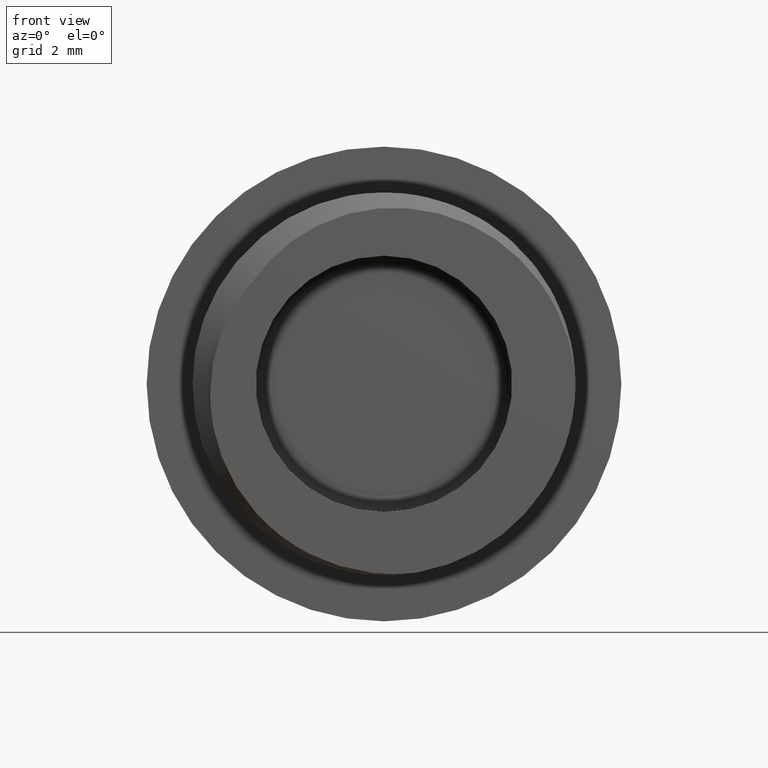
[diagram: clean part render]
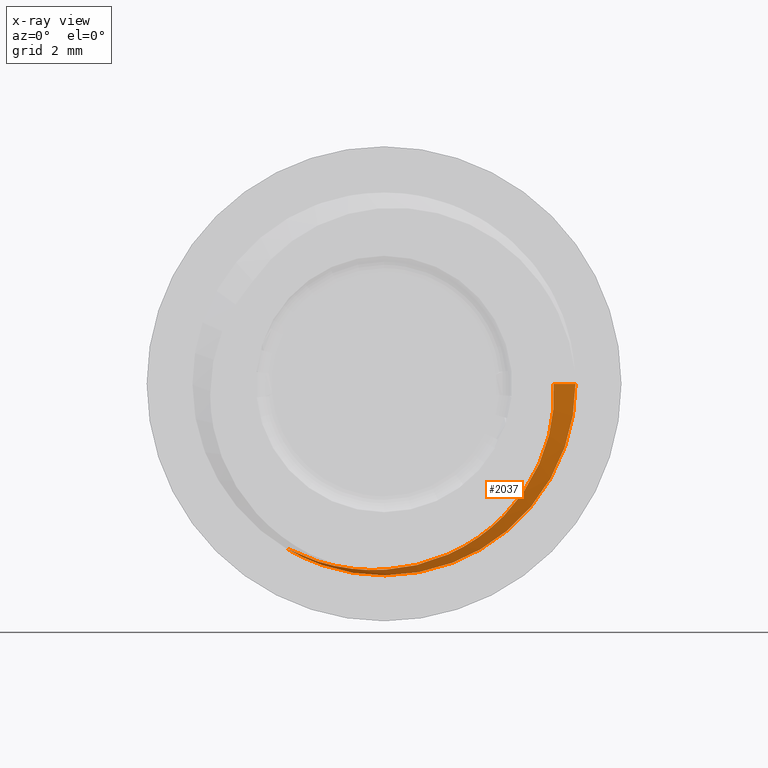
[diagram: x-ray — body ghosted, one internal face saturated and labeled with its STEP entity id]
A machine part, front view, then the same camera in x-ray: the body is ghosted and one INTERNAL B-rep face — a face not visible from any outside direction — is saturated and labeled: STEP entity #2037.
In plain terms, the highlighted face is a freeform B-spline surface patch.
Its self-contained STEP definition (entity closure, byte-faithful):
#439 = CARTESIAN_POINT ( 'NONE',  ( 2.505992052357227400, -0.6438761093469598200, 6.050000000000001600 ) ) ;
#446 = CARTESIAN_POINT ( 'NONE',  ( 6.050000000000001600, -0.8313761093469600500, 2.505992052357228800 ) ) ;
#447 = CARTESIAN_POINT ( 'NONE',  ( -6.050000000000001600, -0.2688761093469597100, 2.505992052357223900 ) ) ;
#449 = CARTESIAN_POINT ( 'NONE',  ( -6.049999999999999800, -0.1751261093469597100, -7.409113134841486500E-016 ) ) ;
#454 = FACE_OUTER_BOUND ( 'NONE', #1606, .T. ) ;
#455 = CARTESIAN_POINT ( 'NONE',  ( -2.505992052357228300, -0.4563761093469597100, 6.050000000000001600 ) ) ;
#459 = CARTESIAN_POINT ( 'NONE',  ( -4.277996026178613000, -0.3626261093469596600, 4.277996026178612100 ) ) ;
#463 = CARTESIAN_POINT ( 'NONE',  ( -6.050000000000001600, -0.08137610934695974100, -2.505992052357227400 ) ) ;
#465 = CARTESIAN_POINT ( 'NONE',  ( -4.277996026178612100, 0.01237389065304023700, -4.277996026178612100 ) ) ;
#466 = CARTESIAN_POINT ( 'NONE',  ( -2.505992052357225200, 0.1061238906530403300, -6.050000000000001600 ) ) ;
#473 = CARTESIAN_POINT ( 'NONE',  ( 6.049999999999999800, -0.9251261093469597100, 1.481822626968297300E-015 ) ) ;
#484 = CARTESIAN_POINT ( 'NONE',  ( 4.277996026178611200, -0.7376261093469600500, 4.277996026178613000 ) ) ;
#485 = CARTESIAN_POINT ( 'NONE',  ( -1.111366970226222900E-015, -0.5501261093469598200, 6.049999999999999800 ) ) ;
#497 = CARTESIAN_POINT ( 'NONE',  ( 4.277996026178611200, 3.762373890653040400, 4.277996026178613000 ) ) ;
#498 = CARTESIAN_POINT ( 'NONE',  ( 6.050000000000001600, 1.981123890653040400, -2.505992052357227000 ) ) ;
#499 = CARTESIAN_POINT ( 'NONE',  ( -6.049999999999999800, 4.324873890653039500, -7.409113134841486500E-016 ) ) ;
#500 = CARTESIAN_POINT ( 'NONE',  ( 3.704556567420743300E-016, 0.1998738906530402900, -6.049999999999999800 ) ) ;
#501 = CARTESIAN_POINT ( 'NONE',  ( -6.050000000000001600, 4.418623890653042200, -2.505992052357227400 ) ) ;
#502 = CARTESIAN_POINT ( 'NONE',  ( -2.505992052357225200, 3.106123890653040400, -6.050000000000001600 ) ) ;
#503 = CARTESIAN_POINT ( 'NONE',  ( 6.050000000000001600, 2.168623890653040800, 2.505992052357228800 ) ) ;
#504 = CARTESIAN_POINT ( 'NONE',  ( 4.277996026178611200, 2.262373890653040400, 4.277996026178613000 ) ) ;
#505 = CARTESIAN_POINT ( 'NONE',  ( -4.277996026178613000, 2.637373890653040400, 4.277996026178612100 ) ) ;
#506 = CARTESIAN_POINT ( 'NONE',  ( 6.050000000000001600, 3.668623890653042200, 2.505992052357228800 ) ) ;
#507 = CARTESIAN_POINT ( 'NONE',  ( -4.277996026178612100, 4.512373890653040400, -4.277996026178612100 ) ) ;
#508 = CARTESIAN_POINT ( 'NONE',  ( 4.277996026178612100, 4.887373890653040400, -4.277996026178612100 ) ) ;
#509 = CARTESIAN_POINT ( 'NONE',  ( 2.505992052357227400, 0.2936238906530404000, -6.050000000000001600 ) ) ;
#510 = CARTESIAN_POINT ( 'NONE',  ( -4.277996026178612100, 1.512373890653040200, -4.277996026178612100 ) ) ;
#511 = CARTESIAN_POINT ( 'NONE',  ( 6.050000000000001600, 4.981123890653040400, -2.505992052357227000 ) ) ;
#512 = CARTESIAN_POINT ( 'NONE',  ( 2.505992052357227400, 5.356123890653042200, 6.050000000000001600 ) ) ;
#513 = CARTESIAN_POINT ( 'NONE',  ( -6.049999999999999800, 5.824873890653040400, -7.409113134841486500E-016 ) ) ;
#514 = CARTESIAN_POINT ( 'NONE',  ( -6.050000000000001600, 1.418623890653040200, -2.505992052357227400 ) ) ;
#515 = CARTESIAN_POINT ( 'NONE',  ( -4.277996026178613000, 1.137373890653040400, 4.277996026178612100 ) ) ;
#516 = CARTESIAN_POINT ( 'NONE',  ( 2.505992052357227400, 1.793623890653040200, -6.050000000000001600 ) ) ;
#517 = CARTESIAN_POINT ( 'NONE',  ( 4.277996026178612100, 3.387373890653040000, -4.277996026178612100 ) ) ;
#518 = CARTESIAN_POINT ( 'NONE',  ( -6.050000000000001600, 5.731123890653040400, 2.505992052357223900 ) ) ;
#519 = CARTESIAN_POINT ( 'NONE',  ( 6.049999999999999800, 2.074873890653040400, 1.481822626968297300E-015 ) ) ;
#520 = CARTESIAN_POINT ( 'NONE',  ( -2.505992052357225200, 6.106123890653039500, -6.050000000000001600 ) ) ;
#521 = CARTESIAN_POINT ( 'NONE',  ( -1.111366970226222900E-015, 2.449873890653040000, 6.049999999999999800 ) ) ;
#522 = CARTESIAN_POINT ( 'NONE',  ( 2.505992052357227400, 2.356123890653040000, 6.050000000000001600 ) ) ;
#523 = CARTESIAN_POINT ( 'NONE',  ( -6.049999999999999800, 2.824873890653040400, -7.409113134841486500E-016 ) ) ;
#524 = CARTESIAN_POINT ( 'NONE',  ( 6.050000000000001600, 3.481123890653041300, -2.505992052357227000 ) ) ;
#525 = CARTESIAN_POINT ( 'NONE',  ( 6.050000000000001600, 0.6686238906530405100, 2.505992052357228800 ) ) ;
#526 = CARTESIAN_POINT ( 'NONE',  ( 2.505992052357227400, 3.856123890653041300, 6.050000000000001600 ) ) ;
#527 = CARTESIAN_POINT ( 'NONE',  ( 3.704556567420743300E-016, 4.699873890653040400, -6.049999999999999800 ) ) ;
#528 = CARTESIAN_POINT ( 'NONE',  ( -6.050000000000001600, 1.231123890653040200, 2.505992052357223900 ) ) ;
#529 = CARTESIAN_POINT ( 'NONE',  ( 4.277996026178612100, 0.3873738906530402900, -4.277996026178612100 ) ) ;
#530 = CARTESIAN_POINT ( 'NONE',  ( 3.704556567420743300E-016, 1.699873890653040400, -6.049999999999999800 ) ) ;
#531 = CARTESIAN_POINT ( 'NONE',  ( -2.505992052357228300, 2.543623890653040000, 6.050000000000001600 ) ) ;
#532 = CARTESIAN_POINT ( 'NONE',  ( 3.704556567420743300E-016, 3.199873890653041700, -6.049999999999999800 ) ) ;
#533 = CARTESIAN_POINT ( 'NONE',  ( 2.505992052357227400, 3.293623890653040800, -6.050000000000001600 ) ) ;
#534 = CARTESIAN_POINT ( 'NONE',  ( 4.277996026178612100, 1.887373890653040400, -4.277996026178612100 ) ) ;
#535 = CARTESIAN_POINT ( 'NONE',  ( 6.050000000000001600, 5.168623890653039500, 2.505992052357228800 ) ) ;
#536 = CARTESIAN_POINT ( 'NONE',  ( 6.049999999999999800, 3.574873890653040000, 1.481822626968297300E-015 ) ) ;
#537 = CARTESIAN_POINT ( 'NONE',  ( -1.111366970226222900E-015, 5.449873890653040400, 6.049999999999999800 ) ) ;
#538 = CARTESIAN_POINT ( 'NONE',  ( 4.277996026178611200, 5.262373890653039500, 4.277996026178613000 ) ) ;
#539 = CARTESIAN_POINT ( 'NONE',  ( -2.505992052357228300, 1.043623890653039700, 6.050000000000001600 ) ) ;
#540 = CARTESIAN_POINT ( 'NONE',  ( -4.277996026178613000, 5.637373890653040400, 4.277996026178612100 ) ) ;
#541 = CARTESIAN_POINT ( 'NONE',  ( 2.505992052357227400, 0.8561238906530407300, 6.050000000000001600 ) ) ;
#542 = CARTESIAN_POINT ( 'NONE',  ( -2.505992052357228300, 4.043623890653040400, 6.050000000000001600 ) ) ;
#543 = CARTESIAN_POINT ( 'NONE',  ( -6.050000000000001600, 5.918623890653040400, -2.505992052357227400 ) ) ;
#544 = CARTESIAN_POINT ( 'NONE',  ( -1.111366970226222900E-015, 3.949873890653040400, 6.049999999999999800 ) ) ;
#545 = CARTESIAN_POINT ( 'NONE',  ( -2.505992052357225200, 1.606123890653040400, -6.050000000000001600 ) ) ;
#546 = CARTESIAN_POINT ( 'NONE',  ( -6.050000000000001600, 2.918623890653040000, -2.505992052357227400 ) ) ;
#547 = CARTESIAN_POINT ( 'NONE',  ( -4.277996026178613000, 4.137373890653040400, 4.277996026178612100 ) ) ;
#548 = CARTESIAN_POINT ( 'NONE',  ( -6.050000000000001600, 2.731123890653041300, 2.505992052357223900 ) ) ;
#549 = CARTESIAN_POINT ( 'NONE',  ( -4.277996026178612100, 6.012373890653040400, -4.277996026178612100 ) ) ;
#550 = CARTESIAN_POINT ( 'NONE',  ( 6.049999999999999800, 0.5748738906530402900, 1.481822626968297300E-015 ) ) ;
#551 = CARTESIAN_POINT ( 'NONE',  ( 6.050000000000001600, 0.4811238906530402900, -2.505992052357227000 ) ) ;
#552 = CARTESIAN_POINT ( 'NONE',  ( 6.049999999999999800, 5.074873890653040400, 1.481822626968297300E-015 ) ) ;
#553 = CARTESIAN_POINT ( 'NONE',  ( -2.505992052357228300, 5.543623890653039500, 6.050000000000001600 ) ) ;
#554 = CARTESIAN_POINT ( 'NONE',  ( -2.505992052357225200, 4.606123890653039500, -6.050000000000001600 ) ) ;
#555 = CARTESIAN_POINT ( 'NONE',  ( 4.277996026178611200, 0.7623738906530402900, 4.277996026178613000 ) ) ;
#556 = CARTESIAN_POINT ( 'NONE',  ( -6.050000000000001600, 4.231123890653040400, 2.505992052357223900 ) ) ;
#557 = CARTESIAN_POINT ( 'NONE',  ( 2.505992052357227400, 4.793623890653040400, -6.050000000000001600 ) ) ;
#558 = CARTESIAN_POINT ( 'NONE',  ( -4.277996026178612100, 3.012373890653040400, -4.277996026178612100 ) ) ;
#559 = CARTESIAN_POINT ( 'NONE',  ( -1.111366970226222900E-015, 0.9498738906530402900, 6.049999999999999800 ) ) ;
#560 = CARTESIAN_POINT ( 'NONE',  ( -6.049999999999999800, 1.324873890653040400, -7.409113134841486500E-016 ) ) ;
#561 = CARTESIAN_POINT ( 'NONE',  ( 3.223800612255540000E-016, -0.3750000000000001100, -5.264865942572300600 ) ) ;
#562 = CARTESIAN_POINT ( 'NONE',  ( -9.671401836766619100E-016, 0.3749999999999998900, 5.264865942572300600 ) ) ;
#563 = CARTESIAN_POINT ( 'NONE',  ( 2.180778877489656200, 1.218750000000000200, -5.264865942572299700 ) ) ;
#564 = CARTESIAN_POINT ( 'NONE',  ( -2.180778877489658800, 0.4687499999999998300, 5.264865942572299700 ) ) ;
#565 = CARTESIAN_POINT ( 'NONE',  ( -5.264865942572300600, -0.8437500000000001100, 2.180778877489654400 ) ) ;
#566 = CARTESIAN_POINT ( 'NONE',  ( -4.277996026178613000, 7.137373890653039500, 4.277996026178612100 ) ) ;
#567 = CARTESIAN_POINT ( 'NONE',  ( 4.277996026178612100, 7.887373890653040400, -4.277996026178612100 ) ) ;
#568 = CARTESIAN_POINT ( 'NONE',  ( 5.264865942572299700, 1.593750000000000000, 2.180778877489658800 ) ) ;
#569 = CARTESIAN_POINT ( 'NONE',  ( -3.722822410030977500, -0.5625000000000004400, -3.722822410030977900 ) ) ;
#570 = CARTESIAN_POINT ( 'NONE',  ( 6.050000000000001600, 7.981123890653040400, -2.505992052357227000 ) ) ;
#571 = CARTESIAN_POINT ( 'NONE',  ( 5.264865942572300600, -1.500000000000000000, 1.289520244902216000E-015 ) ) ;
#572 = CARTESIAN_POINT ( 'NONE',  ( -5.264865942572300600, 2.250000000000001300, -6.447601224511080000E-016 ) ) ;
#573 = CARTESIAN_POINT ( 'NONE',  ( 2.505992052357227400, 7.793623890653040400, -6.050000000000001600 ) ) ;
#574 = CARTESIAN_POINT ( 'NONE',  ( -3.722822410030978400, 0.5625000000000002200, 3.722822410030977500 ) ) ;
#575 = CARTESIAN_POINT ( 'NONE',  ( 3.704556567420743300E-016, 6.199873890653039500, -6.049999999999999800 ) ) ;
#576 = CARTESIAN_POINT ( 'NONE',  ( 3.704556567420743300E-016, 7.699873890653040400, -6.049999999999999800 ) ) ;
#577 = CARTESIAN_POINT ( 'NONE',  ( 3.722822410030977900, -0.1875000000000001100, -3.722822410030977500 ) ) ;
#578 = CARTESIAN_POINT ( 'NONE',  ( 3.722822410030977500, 1.687499999999999800, 3.722822410030978400 ) ) ;
#579 = CARTESIAN_POINT ( 'NONE',  ( 5.264865942572299700, 1.406250000000000000, -2.180778877489655700 ) ) ;
#580 = CARTESIAN_POINT ( 'NONE',  ( -2.505992052357228300, 7.043623890653040400, 6.050000000000001600 ) ) ;
#581 = CARTESIAN_POINT ( 'NONE',  ( -6.049999999999999800, 7.324873890653042200, -7.409113134841486500E-016 ) ) ;
#582 = CARTESIAN_POINT ( 'NONE',  ( 5.264865942572299700, -0.09375000000000011100, -2.180778877489655700 ) ) ;
#583 = CARTESIAN_POINT ( 'NONE',  ( 2.180778877489657000, 1.781250000000000000, 5.264865942572299700 ) ) ;
#584 = CARTESIAN_POINT ( 'NONE',  ( -9.671401836766619100E-016, -1.125000000000000700, 5.264865942572300600 ) ) ;
#585 = CARTESIAN_POINT ( 'NONE',  ( 6.050000000000001600, 6.481123890653039500, -2.505992052357227000 ) ) ;
#586 = CARTESIAN_POINT ( 'NONE',  ( 2.505992052357227400, 6.856123890653040400, 6.050000000000001600 ) ) ;
#587 = CARTESIAN_POINT ( 'NONE',  ( -3.722822410030978400, 2.062500000000000000, 3.722822410030977500 ) ) ;
#588 = CARTESIAN_POINT ( 'NONE',  ( -5.264865942572299700, 2.343750000000000400, -2.180778877489656200 ) ) ;
#589 = CARTESIAN_POINT ( 'NONE',  ( -3.722822410030977500, 0.9374999999999998900, -3.722822410030977900 ) ) ;
#590 = CARTESIAN_POINT ( 'NONE',  ( -3.722822410030977500, 2.437500000000000000, -3.722822410030977900 ) ) ;
#591 = CARTESIAN_POINT ( 'NONE',  ( -5.264865942572299700, -0.6562500000000004400, -2.180778877489656200 ) ) ;
#592 = CARTESIAN_POINT ( 'NONE',  ( 5.264865942572300600, 1.500000000000000000, 1.289520244902216000E-015 ) ) ;
#593 = CARTESIAN_POINT ( 'NONE',  ( -5.264865942572300600, 0.6562500000000000000, 2.180778877489654400 ) ) ;
#594 = CARTESIAN_POINT ( 'NONE',  ( -2.180778877489658800, 1.968750000000000000, 5.264865942572299700 ) ) ;
#595 = CARTESIAN_POINT ( 'NONE',  ( 2.180778877489657000, -1.218750000000000200, 5.264865942572299700 ) ) ;
#596 = CARTESIAN_POINT ( 'NONE',  ( 6.049999999999999800, 8.074873890653041300, 1.481822626968297300E-015 ) ) ;
#597 = CARTESIAN_POINT ( 'NONE',  ( -2.180778877489658800, -1.031250000000000000, 5.264865942572299700 ) ) ;
#598 = CARTESIAN_POINT ( 'NONE',  ( -3.722822410030978400, -0.9375000000000003300, 3.722822410030977500 ) ) ;
#599 = CARTESIAN_POINT ( 'NONE',  ( 2.180778877489656200, -0.2812500000000001100, -5.264865942572299700 ) ) ;
#600 = CARTESIAN_POINT ( 'NONE',  ( 6.049999999999999800, 6.574873890653040400, 1.481822626968297300E-015 ) ) ;
#601 = CARTESIAN_POINT ( 'NONE',  ( 3.722822410030977500, 0.1874999999999998900, 3.722822410030978400 ) ) ;
#602 = CARTESIAN_POINT ( 'NONE',  ( 2.505992052357227400, 6.293623890653040400, -6.050000000000001600 ) ) ;
#603 = CARTESIAN_POINT ( 'NONE',  ( 4.277996026178612100, 6.387373890653042200, -4.277996026178612100 ) ) ;
#604 = CARTESIAN_POINT ( 'NONE',  ( 4.277996026178611200, 6.762373890653040400, 4.277996026178613000 ) ) ;
#605 = CARTESIAN_POINT ( 'NONE',  ( -5.264865942572300600, -0.7500000000000001100, -6.447601224511080000E-016 ) ) ;
#606 = CARTESIAN_POINT ( 'NONE',  ( -4.277996026178612100, 7.512373890653040400, -4.277996026178612100 ) ) ;
#607 = CARTESIAN_POINT ( 'NONE',  ( 2.180778877489657000, 0.2812500000000000600, 5.264865942572299700 ) ) ;
#608 = CARTESIAN_POINT ( 'NONE',  ( -6.050000000000001600, 7.231123890653039500, 2.505992052357223900 ) ) ;
#609 = CARTESIAN_POINT ( 'NONE',  ( 3.722822410030977500, -1.312500000000000200, 3.722822410030978400 ) ) ;
#610 = CARTESIAN_POINT ( 'NONE',  ( 5.264865942572299700, 0.09374999999999988900, 2.180778877489658800 ) ) ;
#611 = CARTESIAN_POINT ( 'NONE',  ( 3.223800612255540000E-016, 1.125000000000000700, -5.264865942572300600 ) ) ;
#612 = CARTESIAN_POINT ( 'NONE',  ( -2.180778877489655300, -0.4687500000000000600, -5.264865942572299700 ) ) ;
#613 = CARTESIAN_POINT ( 'NONE',  ( 3.722822410030977900, 1.312499999999999800, -3.722822410030977500 ) ) ;
#614 = CARTESIAN_POINT ( 'NONE',  ( 6.050000000000001600, 6.668623890653039500, 2.505992052357228800 ) ) ;
#615 = CARTESIAN_POINT ( 'NONE',  ( -5.264865942572300600, 0.7499999999999998900, -6.447601224511080000E-016 ) ) ;
#616 = CARTESIAN_POINT ( 'NONE',  ( -5.264865942572299700, 0.8437499999999998900, -2.180778877489656200 ) ) ;
#617 = CARTESIAN_POINT ( 'NONE',  ( -9.671401836766619100E-016, 1.875000000000000000, 5.264865942572300600 ) ) ;
#618 = CARTESIAN_POINT ( 'NONE',  ( -5.264865942572300600, 2.156250000000000400, 2.180778877489654400 ) ) ;
#619 = CARTESIAN_POINT ( 'NONE',  ( -6.050000000000001600, 7.418623890653040400, -2.505992052357227400 ) ) ;
#620 = CARTESIAN_POINT ( 'NONE',  ( -2.505992052357225200, 7.606123890653039500, -6.050000000000001600 ) ) ;
#621 = CARTESIAN_POINT ( 'NONE',  ( 5.264865942572300600, -1.084202172485504400E-016, 1.289520244902216000E-015 ) ) ;
#622 = CARTESIAN_POINT ( 'NONE',  ( -2.180778877489655300, 1.031250000000000000, -5.264865942572299700 ) ) ;
#623 = CARTESIAN_POINT ( 'NONE',  ( -1.111366970226222900E-015, 6.949873890653040400, 6.049999999999999800 ) ) ;
#624 = CARTESIAN_POINT ( 'NONE',  ( 5.264865942572299700, -1.406250000000000000, 2.180778877489658800 ) ) ;
#625 = CARTESIAN_POINT ( 'NONE',  ( -5.264865942572300600, 6.656250000000000000, 2.180778877489654400 ) ) ;
#626 = CARTESIAN_POINT ( 'NONE',  ( -5.264865942572300600, 6.750000000000000000, -6.447601224511080000E-016 ) ) ;
#627 = CARTESIAN_POINT ( 'NONE',  ( -2.180778877489658800, 4.968749999999999100, 5.264865942572299700 ) ) ;
#628 = CARTESIAN_POINT ( 'NONE',  ( -5.264865942572299700, 3.843750000000000000, -2.180778877489656200 ) ) ;
#629 = CARTESIAN_POINT ( 'NONE',  ( -3.722822410030977500, 5.437500000000002700, -3.722822410030977900 ) ) ;
#630 = CARTESIAN_POINT ( 'NONE',  ( -9.671401836766619100E-016, 3.375000000000000000, 5.264865942572300600 ) ) ;
#631 = CARTESIAN_POINT ( 'NONE',  ( -2.180778877489655300, 2.531250000000000900, -5.264865942572299700 ) ) ;
#632 = CARTESIAN_POINT ( 'NONE',  ( 5.264865942572299700, 2.906250000000000000, -2.180778877489655700 ) ) ;
#633 = CARTESIAN_POINT ( 'NONE',  ( 2.180778877489657000, 6.281250000000000000, 5.264865942572299700 ) ) ;
#634 = CARTESIAN_POINT ( 'NONE',  ( 2.180778877489656200, 5.718750000000000000, -5.264865942572299700 ) ) ;
#635 = CARTESIAN_POINT ( 'NONE',  ( -5.264865942572299700, 6.843750000000000900, -2.180778877489656200 ) ) ;
#636 = CARTESIAN_POINT ( 'NONE',  ( 2.180778877489657000, 4.781250000000000000, 5.264865942572299700 ) ) ;
#637 = CARTESIAN_POINT ( 'NONE',  ( -5.264865942572300600, 5.250000000000000000, -6.447601224511080000E-016 ) ) ;
#638 = CARTESIAN_POINT ( 'NONE',  ( -2.180778877489658800, 3.468750000000000000, 5.264865942572299700 ) ) ;
#639 = CARTESIAN_POINT ( 'NONE',  ( 2.180778877489656200, 7.218750000000000000, -5.264865942572299700 ) ) ;
#640 = CARTESIAN_POINT ( 'NONE',  ( 3.722822410030977900, 7.312500000000000000, -3.722822410030977500 ) ) ;
#641 = CARTESIAN_POINT ( 'NONE',  ( 5.264865942572299700, 5.906249999999999100, -2.180778877489655700 ) ) ;
#642 = CARTESIAN_POINT ( 'NONE',  ( -2.180778877489655300, 7.031249999999999100, -5.264865942572299700 ) ) ;
#643 = CARTESIAN_POINT ( 'NONE',  ( 5.264865942572300600, 4.500000000000002700, 1.289520244902216000E-015 ) ) ;
#644 = CARTESIAN_POINT ( 'NONE',  ( 5.264865942572299700, 7.406250000000000000, -2.180778877489655700 ) ) ;
#645 = CARTESIAN_POINT ( 'NONE',  ( 5.264865942572299700, 6.093750000000000000, 2.180778877489658800 ) ) ;
#646 = CARTESIAN_POINT ( 'NONE',  ( 5.264865942572300600, 7.500000000000000000, 1.289520244902216000E-015 ) ) ;
#647 = CARTESIAN_POINT ( 'NONE',  ( 3.722822410030977500, 6.187500000000000000, 3.722822410030978400 ) ) ;
#648 = CARTESIAN_POINT ( 'NONE',  ( 2.180778877489656200, 2.718750000000001300, -5.264865942572299700 ) ) ;
#649 = CARTESIAN_POINT ( 'NONE',  ( 3.223800612255540000E-016, 2.625000000000000000, -5.264865942572300600 ) ) ;
#650 = CARTESIAN_POINT ( 'NONE',  ( 5.264865942572299700, 3.093750000000000400, 2.180778877489658800 ) ) ;
#651 = CARTESIAN_POINT ( 'NONE',  ( -3.722822410030977500, 3.937500000000000000, -3.722822410030977900 ) ) ;
#652 = CARTESIAN_POINT ( 'NONE',  ( 3.722822410030977500, 4.687500000000000000, 3.722822410030978400 ) ) ;
#653 = CARTESIAN_POINT ( 'NONE',  ( -5.264865942572300600, 5.156250000000000000, 2.180778877489654400 ) ) ;
#654 = CARTESIAN_POINT ( 'NONE',  ( -5.264865942572300600, 3.750000000000000000, -6.447601224511080000E-016 ) ) ;
#655 = CARTESIAN_POINT ( 'NONE',  ( 3.722822410030977900, 2.812500000000000000, -3.722822410030977500 ) ) ;
#656 = CARTESIAN_POINT ( 'NONE',  ( -2.180778877489658800, 6.468750000000000000, 5.264865942572299700 ) ) ;
#657 = CARTESIAN_POINT ( 'NONE',  ( 5.264865942572300600, 6.000000000000000000, 1.289520244902216000E-015 ) ) ;
#658 = CARTESIAN_POINT ( 'NONE',  ( -3.722822410030978400, 6.562500000000000000, 3.722822410030977500 ) ) ;
#659 = CARTESIAN_POINT ( 'NONE',  ( -3.722822410030978400, 3.562500000000000000, 3.722822410030977500 ) ) ;
#660 = CARTESIAN_POINT ( 'NONE',  ( 3.223800612255540000E-016, 7.125000000000000000, -5.264865942572300600 ) ) ;
#661 = CARTESIAN_POINT ( 'NONE',  ( 3.223800612255540000E-016, 4.125000000000000000, -5.264865942572300600 ) ) ;
#665 = CARTESIAN_POINT ( 'NONE',  ( 5.264865942572299700, 4.593750000000000000, 2.180778877489658800 ) ) ;
#667 = CARTESIAN_POINT ( 'NONE',  ( -3.722822410030977500, 6.937500000000000000, -3.722822410030977900 ) ) ;
#668 = CARTESIAN_POINT ( 'NONE',  ( 3.223800612255540000E-016, 5.625000000000000000, -5.264865942572300600 ) ) ;
#669 = CARTESIAN_POINT ( 'NONE',  ( 3.722822410030977900, 5.812500000000000000, -3.722822410030977500 ) ) ;
#670 = CARTESIAN_POINT ( 'NONE',  ( 3.722822410030977500, 3.187500000000000400, 3.722822410030978400 ) ) ;
#673 = CARTESIAN_POINT ( 'NONE',  ( 5.264865942572300600, 3.000000000000000000, 1.289520244902216000E-015 ) ) ;
#675 = CARTESIAN_POINT ( 'NONE',  ( 2.180778877489656200, 4.218750000000000000, -5.264865942572299700 ) ) ;
#676 = CARTESIAN_POINT ( 'NONE',  ( -5.264865942572300600, 3.656250000000001300, 2.180778877489654400 ) ) ;
#677 = CARTESIAN_POINT ( 'NONE',  ( -2.180778877489655300, 4.031250000000000000, -5.264865942572299700 ) ) ;
#678 = CARTESIAN_POINT ( 'NONE',  ( 5.264865942572299700, 4.406250000000000000, -2.180778877489655700 ) ) ;
#679 = CARTESIAN_POINT ( 'NONE',  ( -9.671401836766619100E-016, 4.875000000000000000, 5.264865942572300600 ) ) ;
#680 = CARTESIAN_POINT ( 'NONE',  ( -5.264865942572299700, 5.343750000000000000, -2.180778877489656200 ) ) ;
#681 = CARTESIAN_POINT ( 'NONE',  ( 3.722822410030977900, 4.312500000000000000, -3.722822410030977500 ) ) ;
#682 = CARTESIAN_POINT ( 'NONE',  ( -9.671401836766619100E-016, 6.375000000000000900, 5.264865942572300600 ) ) ;
#683 = CARTESIAN_POINT ( 'NONE',  ( 2.180778877489657000, 3.281250000000000000, 5.264865942572299700 ) ) ;
#684 = CARTESIAN_POINT ( 'NONE',  ( -3.722822410030978400, 5.062500000000000000, 3.722822410030977500 ) ) ;
#685 = CARTESIAN_POINT ( 'NONE',  ( -2.180778877489655300, 5.531250000000000000, -5.264865942572299700 ) ) ;
#884 = CARTESIAN_POINT ( 'NONE',  ( 5.657432971286150200, 7.787436945326520600, 1.385671435935256800E-015 ) ) ;
#894 = LINE ( 'NONE', #884, #2141 ) ;
#904 = DIRECTION ( 'NONE',  ( 0.8068414640029600800, 0.5907680187396404700, 1.976191632621178800E-016 ) ) ;
#950 = CARTESIAN_POINT ( 'NONE',  ( 6.049999999999999800, 8.074873890653041300, 1.481822626968297300E-015 ) ) ;
#978 = CARTESIAN_POINT ( 'NONE',  ( -1.667357122825571700, 7.637497503577964900, -6.050000000000001600 ) ) ;
#987 = CARTESIAN_POINT ( 'NONE',  ( 6.050000000000001600, 7.981123890653040400, -2.505992052357227000 ) ) ;
#1000 = CARTESIAN_POINT ( 'NONE',  ( -3.099311392846173100, 7.570691688707112700, -5.195841499716280500 ) ) ;
#1003 = CARTESIAN_POINT ( 'NONE',  ( 3.704556567420743300E-016, 7.699873890653040400, -6.049999999999999800 ) ) ;
#1007 = CARTESIAN_POINT ( 'NONE',  ( 4.277996026178612100, 7.887373890653040400, -4.277996026178612100 ) ) ;
#1024 = CARTESIAN_POINT ( 'NONE',  ( 2.505992052357227400, 7.793623890653040400, -6.050000000000001600 ) ) ;
#1229 = CARTESIAN_POINT ( 'NONE',  ( -3.099311392846173100, 7.570691688707112700, -5.195841499716280500 ) ) ;
#1236 = CARTESIAN_POINT ( 'NONE',  ( -2.650685182786550500, 7.570691688707114500, -5.431214058369421900 ) ) ;
#1239 = CARTESIAN_POINT ( 'NONE',  ( -2.182219896489947100, 7.570691688707116300, -5.605596481021366100 ) ) ;
#1242 = CARTESIAN_POINT ( 'NONE',  ( -0.6994413521463447300, 7.570691688707116300, -5.874815945855166500 ) ) ;
#1248 = CARTESIAN_POINT ( 'NONE',  ( -1.200198321742196300, 7.570691688707117200, -5.821485175717247000 ) ) ;
#1250 = CARTESIAN_POINT ( 'NONE',  ( 2.226553891130341500, 7.570691688707118900, -5.319487611073238800 ) ) ;
#1251 = CARTESIAN_POINT ( 'NONE',  ( 0.04978646849306980100, 7.570691688707118900, -5.875947519634053200 ) ) ;
#1252 = CARTESIAN_POINT ( 'NONE',  ( 3.094577150935868800, 7.570691688707117200, -4.796232289551806400 ) ) ;
#1253 = CARTESIAN_POINT ( 'NONE',  ( 4.007157645625736300, 7.570691688707088800, -3.941035026440582000 ) ) ;
#1254 = CARTESIAN_POINT ( 'NONE',  ( 0.2990260200962457400, 7.570691688707115400, -5.855527614105082700 ) ) ;
#1256 = CARTESIAN_POINT ( 'NONE',  ( 4.467417394723578500, 7.570691688707116300, -3.339688822989214300 ) ) ;
#1257 = CARTESIAN_POINT ( 'NONE',  ( 1.768248365277681700, 7.570691688707116300, -5.518686137012946500 ) ) ;
#1263 = CARTESIAN_POINT ( 'NONE',  ( 4.171322660975119100, 7.570691688707117200, -3.746047006908349800 ) ) ;
#1266 = CARTESIAN_POINT ( 'NONE',  ( 4.836590911667405700, 7.570691688707113600, -2.688098504491356300 ) ) ;
#1267 = CARTESIAN_POINT ( 'NONE',  ( 4.939901381476469800, 7.570691688707116300, -2.459824598856468600 ) ) ;
#1269 = CARTESIAN_POINT ( 'NONE',  ( 3.485291946457271800, 7.570691688707091400, -4.483527394676869400 ) ) ;
#1274 = CARTESIAN_POINT ( 'NONE',  ( -0.4494483186565994000, 7.570691688707116300, -5.885546167263162200 ) ) ;
#1275 = CARTESIAN_POINT ( 'NONE',  ( 0.7966915466016490900, 7.570691688707116300, -5.781053261913721800 ) ) ;
#1276 = CARTESIAN_POINT ( 'NONE',  ( 5.115809782804429800, 7.570691688707115400, -1.986048828643254500 ) ) ;
#1277 = CARTESIAN_POINT ( 'NONE',  ( 1.045502222614847600, 7.570691688707116300, -5.726803114899056800 ) ) ;
#1279 = CARTESIAN_POINT ( 'NONE',  ( -1.450716778350166400, 7.570691688707114500, -5.778615972908740500 ) ) ;
#1280 = CARTESIAN_POINT ( 'NONE',  ( 4.600350036246717300, 7.570691688707115400, -3.128031243666306700 ) ) ;
#1291 = CARTESIAN_POINT ( 'NONE',  ( 5.295275853909709300, 7.570691688707115400, -1.254474833977891300 ) ) ;
#1295 = CARTESIAN_POINT ( 'NONE',  ( 5.372894156146131200, 7.570691688707111000, -0.5071671475785937100 ) ) ;
#1299 = CARTESIAN_POINT ( 'NONE',  ( 5.361413121498767300, 7.570691688707115400, 1.313167483630017100E-015 ) ) ;
#1309 = CARTESIAN_POINT ( 'NONE',  ( 5.376007072049291400, 7.570691688707117200, -0.2531243640991723300 ) ) ;
#1320 = CARTESIAN_POINT ( 'NONE',  ( 5.187197811700716700, 7.570691688707117200, -1.743209769935105900 ) ) ;
#1321 = CARTESIAN_POINT ( 'NONE',  ( 5.332462277603129400, 7.570691688707109200, -1.007274236810045600 ) ) ;
#1606 = EDGE_LOOP ( 'NONE', ( #1745, #1771, #1763 ) ) ;
#1745 = ORIENTED_EDGE ( 'NONE', *, *, #1948, .F. ) ;
#1763 = ORIENTED_EDGE ( 'NONE', *, *, #1952, .F. ) ;
#1771 = ORIENTED_EDGE ( 'NONE', *, *, #1999, .F. ) ;
#1807 = VERTEX_POINT ( 'NONE', #1818 ) ;
#1818 = CARTESIAN_POINT ( 'NONE',  ( 5.361413121498767300, 7.570691688707115400, 1.313167483630017100E-015 ) ) ;
#1843 = VERTEX_POINT ( 'NONE', #1875 ) ;
#1854 = VERTEX_POINT ( 'NONE', #1877 ) ;
#1875 = CARTESIAN_POINT ( 'NONE',  ( -3.099311392846173100, 7.570691688707112700, -5.195841499716280500 ) ) ;
#1877 = CARTESIAN_POINT ( 'NONE',  ( 6.049999999999999800, 8.074873890653041300, 1.481822626968297300E-015 ) ) ;
#1930 = B_SPLINE_CURVE_WITH_KNOTS ( 'NONE', 3,
 ( #1229, #1236, #1239, #1279, #1248, #1242, #1274, #1251, #1254, #1275, #1277, #1257, #1250, #1252, #1269, #1253, #1263, #1256, #1280, #1266, #1267, #1276, #1320, #1291, #1321, #1295, #1309, #1299 ),
 .UNSPECIFIED., .F., .F.,
 ( 4, 2, 2, 2, 2, 2, 2, 2, 2, 2, 2, 2, 2, 4 ),
 ( 0.0000000000000000000, 0.001498293008276129300, 0.002247439512414193900, 0.002996586016552258600, 0.003745732520690323200, 0.004494879024828387800, 0.005993172033104518000, 0.007491465041380649000, 0.008240611545518713700, 0.008989758049656780900, 0.009738904553794846400, 0.01048805105793291200, 0.01123719756207097700, 0.01198634406620904500 ),
 .UNSPECIFIED. ) ;
#1948 = EDGE_CURVE ( 'NONE', #1807, #1854, #894, .T. ) ;
#1952 = EDGE_CURVE ( 'NONE', #1854, #1843, #2057, .T. ) ;
#1999 = EDGE_CURVE ( 'NONE', #1843, #1807, #1930, .T. ) ;
#2037 = ADVANCED_FACE ( 'NONE', ( #454 ), #2080, .F. ) ;
#2057 =( BOUNDED_CURVE ( )  B_SPLINE_CURVE ( 2, ( #950, #987, #1007, #1024, #1003, #978, #1000 ),
 .UNSPECIFIED., .F., .T. ) 
 B_SPLINE_CURVE_WITH_KNOTS ( ( 3, 2, 2, 3 ),
 ( 0.0000000000000000000, 0.02083333333333337000, 0.04166666666666663000, 0.05589041987010789900 ),
 .UNSPECIFIED. ) 
 CURVE ( )  GEOMETRIC_REPRESENTATION_ITEM ( )  RATIONAL_B_SPLINE_CURVE ( ( 1.000000000000000000, 0.9238795325112867400, 1.000000000000000000, 0.9238795325112867400, 1.000000000000000000, 0.9480295003220785600, 0.9670236945268717600 ) ) 
 REPRESENTATION_ITEM ( '' )  );
#2080 =( BOUNDED_SURFACE ( )  B_SPLINE_SURFACE ( 1, 2, ( 
 ( #473, #446, #484, #439, #485, #455, #459, #447, #449, #463, #465, #466, #500, #509, #529, #551, #550, #525, #555, #541, #559, #539, #515, #528, #560, #514, #510, #545, #530, #516, #534, #498, #519, #503, #504, #522, #521, #531, #505, #548, #523, #546, #558, #502, #532, #533, #517, #524, #536, #506, #497, #526, #544, #542, #547, #556, #499, #501, #507, #554, #527, #557, #508, #511, #552, #535, #538, #512, #537, #553, #540, #518, #513, #543, #549, #520, #575, #602, #603, #585, #600, #614, #604, #586, #623, #580, #566, #608, #581, #619, #606, #620, #576, #573, #567, #570, #596 ),
 ( #571, #624, #609, #595, #584, #597, #598, #565, #605, #591, #569, #612, #561, #599, #577, #582, #621, #610, #601, #607, #562, #564, #574, #593, #615, #616, #589, #622, #611, #563, #613, #579, #592, #568, #578, #583, #617, #594, #587, #618, #572, #588, #590, #631, #649, #648, #655, #632, #673, #650, #670, #683, #630, #638, #659, #676, #654, #628, #651, #677, #661, #675, #681, #678, #643, #665, #652, #636, #679, #627, #684, #653, #637, #680, #629, #685, #668, #634, #669, #641, #657, #645, #647, #633, #682, #656, #658, #625, #626, #635, #667, #642, #660, #639, #640, #644, #646 ) ),
 .UNSPECIFIED., .F., .F., .F. ) 
 B_SPLINE_SURFACE_WITH_KNOTS ( ( 2, 2 ),
 ( 3, 2, 2, 2, 2, 2, 2, 2, 2, 2, 2, 2, 2, 2, 2, 2, 2, 2, 2, 2, 2, 2, 2, 2, 2, 2, 2, 2, 2, 2, 2, 2, 2, 2, 2, 2, 2, 2, 2, 2, 2, 2, 2, 2, 2, 2, 2, 2, 3 ),
 ( 0.0000000000000000000, 1.000000000000000000 ),
 ( 0.0000000000000000000, 0.02083333333333333200, 0.04166666666666666400, 0.06250000000000000000, 0.08333333333333332900, 0.1041666666666666700, 0.1250000000000000000, 0.1458333333333333400, 0.1666666666666666600, 0.1875000000000000000, 0.2083333333333333400, 0.2291666666666666600, 0.2500000000000000000, 0.2708333333333333100, 0.2916666666666666900, 0.3125000000000000000, 0.3333333333333333100, 0.3541666666666666900, 0.3750000000000000000, 0.3958333333333333100, 0.4166666666666666900, 0.4375000000000000000, 0.4583333333333333100, 0.4791666666666666900, 0.5000000000000000000, 0.5208333333333333700, 0.5416666666666666300, 0.5625000000000000000, 0.5833333333333333700, 0.6041666666666666300, 0.6250000000000000000, 0.6458333333333333700, 0.6666666666666666300, 0.6875000000000000000, 0.7083333333333333700, 0.7291666666666666300, 0.7500000000000000000, 0.7708333333333333700, 0.7916666666666666300, 0.8125000000000000000, 0.8333333333333333700, 0.8541666666666666300, 0.8750000000000000000, 0.8958333333333333700, 0.9166666666666666300, 0.9375000000000000000, 0.9583333333333333700, 0.9791666666666666300, 1.000000000000000000 ),
 .UNSPECIFIED. ) 
 GEOMETRIC_REPRESENTATION_ITEM ( )  RATIONAL_B_SPLINE_SURFACE ( (
 ( 1.000000000000000000, 0.9238795325112867400, 1.000000000000000000, 0.9238795325112867400, 1.000000000000000000, 0.9238795325112867400, 1.000000000000000000, 0.9238795325112867400, 1.000000000000000000, 0.9238795325112867400, 1.000000000000000000, 0.9238795325112867400, 1.000000000000000000, 0.9238795325112867400, 1.000000000000000000, 0.9238795325112867400, 1.000000000000000000, 0.9238795325112867400, 1.000000000000000000, 0.9238795325112867400, 1.000000000000000000, 0.9238795325112867400, 1.000000000000000000, 0.9238795325112867400, 1.000000000000000000, 0.9238795325112867400, 1.000000000000000000, 0.9238795325112867400, 1.000000000000000000, 0.9238795325112867400, 1.000000000000000000, 0.9238795325112867400, 1.000000000000000000, 0.9238795325112867400, 1.000000000000000000, 0.9238795325112867400, 1.000000000000000000, 0.9238795325112867400, 1.000000000000000000, 0.9238795325112867400, 1.000000000000000000, 0.9238795325112867400, 1.000000000000000000, 0.9238795325112867400, 1.000000000000000000, 0.9238795325112867400, 1.000000000000000000, 0.9238795325112867400, 1.000000000000000000, 0.9238795325112867400, 1.000000000000000000, 0.9238795325112867400, 1.000000000000000000, 0.9238795325112867400, 1.000000000000000000, 0.9238795325112867400, 1.000000000000000000, 0.9238795325112867400, 1.000000000000000000, 0.9238795325112867400, 1.000000000000000000, 0.9238795325112867400, 1.000000000000000000, 0.9238795325112867400, 1.000000000000000000, 0.9238795325112867400, 1.000000000000000000, 0.9238795325112867400, 1.000000000000000000, 0.9238795325112867400, 1.000000000000000000, 0.9238795325112867400, 1.000000000000000000, 0.9238795325112867400, 1.000000000000000000, 0.9238795325112867400, 1.000000000000000000, 0.9238795325112867400, 1.000000000000000000, 0.9238795325112867400, 1.000000000000000000, 0.9238795325112867400, 1.000000000000000000, 0.9238795325112867400, 1.000000000000000000, 0.9238795325112867400, 1.000000000000000000, 0.9238795325112867400, 1.000000000000000000, 0.9238795325112867400, 1.000000000000000000, 0.9238795325112867400, 1.000000000000000000, 0.9238795325112867400, 1.000000000000000000, 0.9238795325112867400, 1.000000000000000000),
 ( 1.000000000000000000, 0.9238795325112867400, 1.000000000000000000, 0.9238795325112867400, 1.000000000000000000, 0.9238795325112867400, 1.000000000000000000, 0.9238795325112867400, 1.000000000000000000, 0.9238795325112867400, 1.000000000000000000, 0.9238795325112867400, 1.000000000000000000, 0.9238795325112867400, 1.000000000000000000, 0.9238795325112867400, 1.000000000000000000, 0.9238795325112867400, 1.000000000000000000, 0.9238795325112867400, 1.000000000000000000, 0.9238795325112867400, 1.000000000000000000, 0.9238795325112867400, 1.000000000000000000, 0.9238795325112867400, 1.000000000000000000, 0.9238795325112867400, 1.000000000000000000, 0.9238795325112867400, 1.000000000000000000, 0.9238795325112867400, 1.000000000000000000, 0.9238795325112867400, 1.000000000000000000, 0.9238795325112867400, 1.000000000000000000, 0.9238795325112867400, 1.000000000000000000, 0.9238795325112867400, 1.000000000000000000, 0.9238795325112867400, 1.000000000000000000, 0.9238795325112867400, 1.000000000000000000, 0.9238795325112867400, 1.000000000000000000, 0.9238795325112867400, 1.000000000000000000, 0.9238795325112867400, 1.000000000000000000, 0.9238795325112867400, 1.000000000000000000, 0.9238795325112867400, 1.000000000000000000, 0.9238795325112867400, 1.000000000000000000, 0.9238795325112867400, 1.000000000000000000, 0.9238795325112867400, 1.000000000000000000, 0.9238795325112867400, 1.000000000000000000, 0.9238795325112867400, 1.000000000000000000, 0.9238795325112867400, 1.000000000000000000, 0.9238795325112867400, 1.000000000000000000, 0.9238795325112867400, 1.000000000000000000, 0.9238795325112867400, 1.000000000000000000, 0.9238795325112867400, 1.000000000000000000, 0.9238795325112867400, 1.000000000000000000, 0.9238795325112867400, 1.000000000000000000, 0.9238795325112867400, 1.000000000000000000, 0.9238795325112867400, 1.000000000000000000, 0.9238795325112867400, 1.000000000000000000, 0.9238795325112867400, 1.000000000000000000, 0.9238795325112867400, 1.000000000000000000, 0.9238795325112867400, 1.000000000000000000, 0.9238795325112867400, 1.000000000000000000, 0.9238795325112867400, 1.000000000000000000, 0.9238795325112867400, 1.000000000000000000) ) ) 
 REPRESENTATION_ITEM ( '' )  SURFACE ( )  );
#2141 = VECTOR ( 'NONE', #904, 1000.000000000000000 ) ;